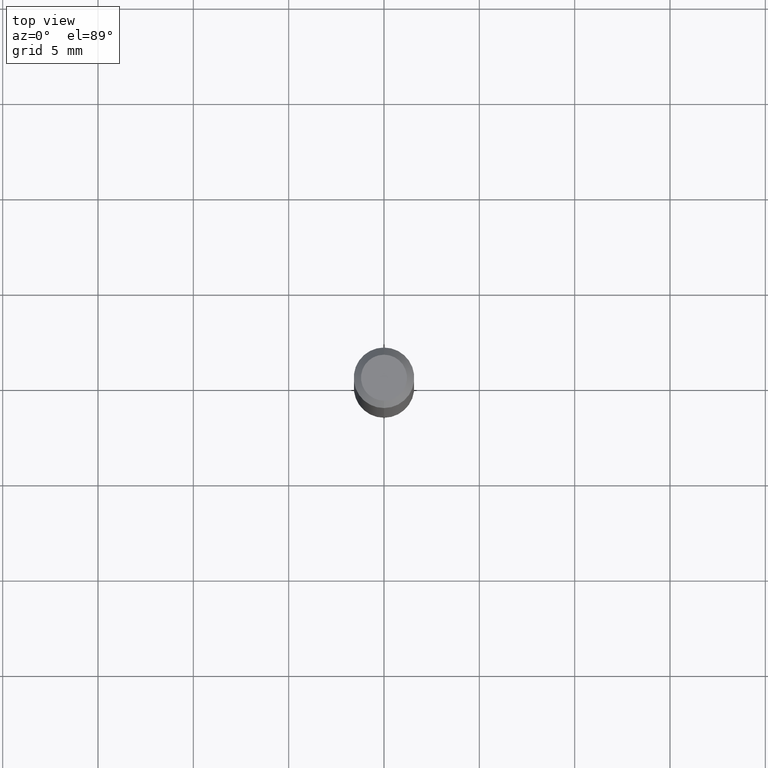
[diagram: clean part render]
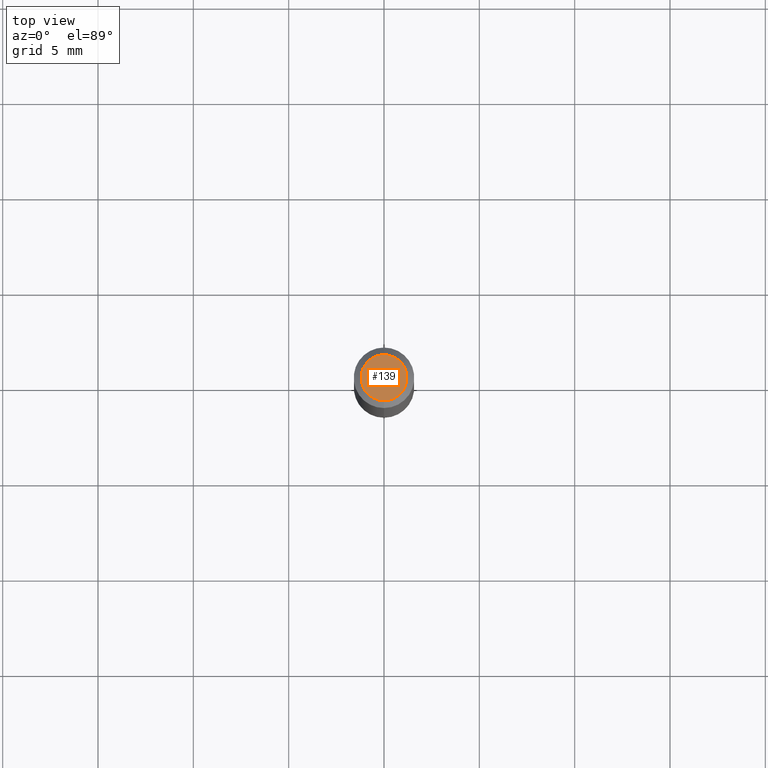
[diagram: same view with one face highlighted and labeled with its STEP entity id]
A machine part, top view. The second image highlights one B-rep face of the part: STEP entity #139.
In plain terms, the highlighted planar face has unit normal (0, -0, -1).
Its self-contained STEP definition (entity closure, byte-faithful):
#7 = EDGE_CURVE ( 'NONE', #518, #68, #83, .T. ) ;
#60 = FACE_OUTER_BOUND ( 'NONE', #243, .T. ) ;
#68 = VERTEX_POINT ( 'NONE', #318 ) ;
#75 = DIRECTION ( 'NONE',  ( -6.982962677686265133E-15, -1.000000000000000000, 3.491850649655521021E-15 ) ) ;
#83 = CIRCLE ( 'NONE', #124, 0.04750000000000000749 ) ;
#90 = CIRCLE ( 'NONE', #498, 0.04750000000000000749 ) ;
#102 = DIRECTION ( 'NONE',  ( 2.445210917823207656E-29, -3.491850649655521416E-15, -1.000000000000000000 ) ) ;
#104 = ORIENTED_EDGE ( 'NONE', *, *, #128, .T. ) ;
#124 = AXIS2_PLACEMENT_3D ( 'NONE', #277, #438, #75 ) ;
#128 = EDGE_CURVE ( 'NONE', #68, #518, #90, .T. ) ;
#139 = ADVANCED_FACE ( 'NONE', ( #60 ), #305, .F. ) ;
#148 = CARTESIAN_POINT ( 'NONE',  ( 3.316907271900976589E-16, 0.04750000000000000749, -2.926173504363019138E-17 ) ) ;
#212 = ORIENTED_EDGE ( 'NONE', *, *, #7, .T. ) ;
#231 = DIRECTION ( 'NONE',  ( -6.982962677686265133E-15, -1.000000000000000000, 3.491850649655521021E-15 ) ) ;
#243 = EDGE_LOOP ( 'NONE', ( #212, #104 ) ) ;
#277 = CARTESIAN_POINT ( 'NONE',  ( -6.680373485285765149E-45, 9.539817741081743086E-31, 2.732023416300141226E-16 ) ) ;
#296 = CARTESIAN_POINT ( 'NONE',  ( 3.840629472727447874E-16, 0.04750000000000000749, 1.073394357713768268E-16 ) ) ;
#305 = PLANE ( 'NONE',  #365 ) ;
#318 = CARTESIAN_POINT ( 'NONE',  ( -3.773273898774340269E-16, -0.04750000000000000749, 4.390652474886513692E-16 ) ) ;
#343 = CARTESIAN_POINT ( 'NONE',  ( -6.680373485285765149E-45, 9.539817741081743086E-31, 2.732023416300141226E-16 ) ) ;
#365 = AXIS2_PLACEMENT_3D ( 'NONE', #148, #102, #471 ) ;
#395 = DIRECTION ( 'NONE',  ( -2.445210917823208217E-29, 3.491850649655521021E-15, 1.000000000000000000 ) ) ;
#438 = DIRECTION ( 'NONE',  ( -2.445210917823208217E-29, 3.491850649655521021E-15, 1.000000000000000000 ) ) ;
#471 = DIRECTION ( 'NONE',  ( 6.982962677686265922E-15, 1.000000000000000000, -3.491850649655521416E-15 ) ) ;
#498 = AXIS2_PLACEMENT_3D ( 'NONE', #343, #395, #231 ) ;
#518 = VERTEX_POINT ( 'NONE', #296 ) ;